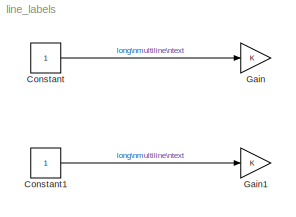
MODEL line_labels
KIND model
BLOCK [Constant] Constant
  SID = 3
BLOCK [Constant] Constant1
  SID = 5
BLOCK [Gain] Gain
  OutDataTypeStr = Inherit: Inherit via internal rule
  ParamDataTypeStr = Inherit: Inherit via internal rule
  SID = 4
  SaturateOnIntegerOverflow = off
BLOCK [Gain] Gain1
  OutDataTypeStr = Inherit: Inherit via internal rule
  ParamDataTypeStr = Inherit: Inherit via internal rule
  SID = 6
  SaturateOnIntegerOverflow = off
LINE Constant1:1 -> Gain1:1
LINE Constant:1 -> Gain:1
